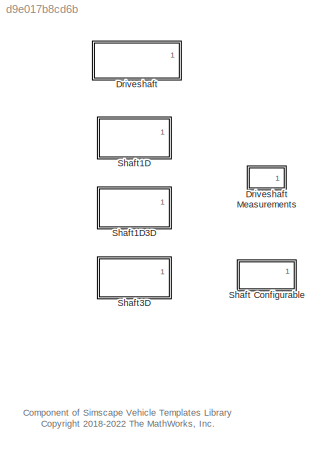
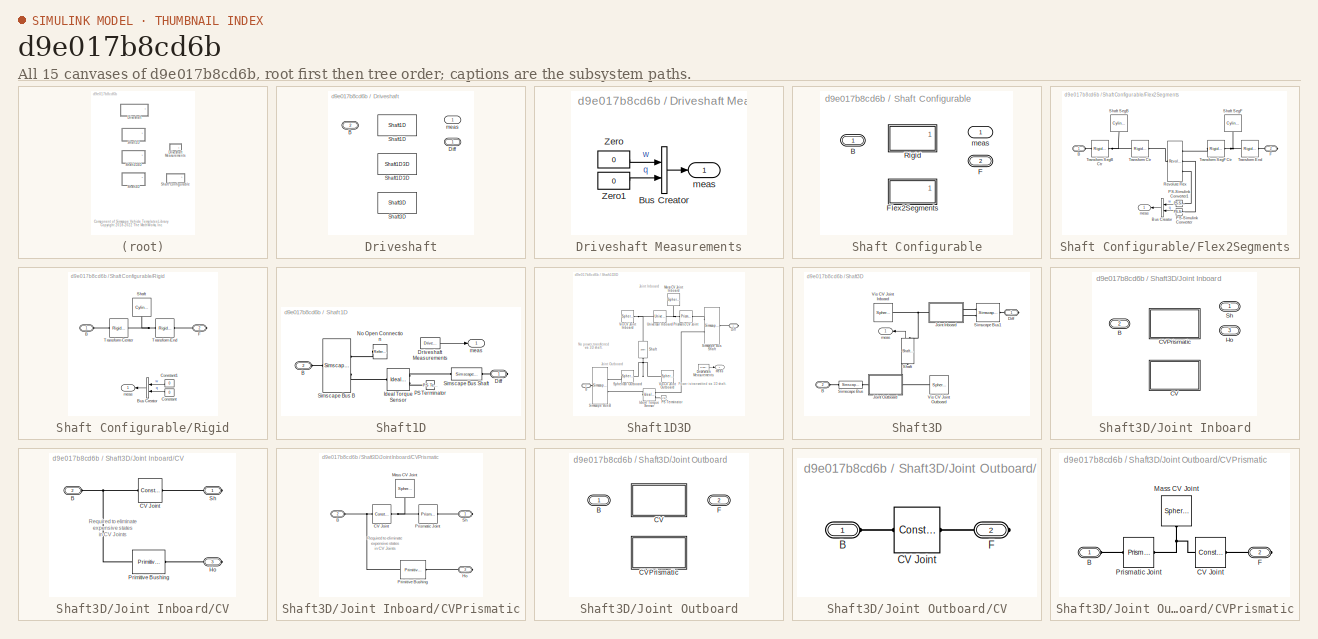
[diagram: thumbnail index - all 15 canvases of the model, root first then tree order]
MODEL slx_d9e017b8cd6b
KIND library
CONFIG AbsTol = auto
CONFIG EnableMultiTasking = off
CONFIG FixedStep = auto
CONFIG MaxStep = auto
CONFIG MinStep = auto
CONFIG RelTol = 1e-3
CONFIG SampleTimeConstraint = Unconstrained
CONFIG SolverName = VariableStepAuto
CONFIG StartTime = 0.0
CONFIG StopTime = 10.0
BLOCK [SubSystem] Driveshaft
  AttributesFormatString = %<ActiveVariant>
  Ports = [0, 1, 0, 0, 0, 1, 1]
  RequestExecContextInheritance = off
  Variant = on
  VariantControl = Variant1
BLOCK [SubSystem] Driveshaft Measurements
  Ports = [0, 1]
  RequestExecContextInheritance = off
BLOCK [BusCreator] Driveshaft Measurements/Bus Creator
  DisplayOption = bar
  InheritFromInputs = on
  Inputs = 2
  Ports = [2, 1]
BLOCK [Constant] Driveshaft Measurements/Zero
  OutDataTypeStr = Inherit: Inherit via back propagation
  Value = 0
BLOCK [Constant] Driveshaft Measurements/Zero1
  OutDataTypeStr = Inherit: Inherit via back propagation
  Value = 0
BLOCK [Outport] Driveshaft Measurements/meas
  VectorParamsAs1DForOutWhenUnconnected = off
BLOCK [PMIOPort] Driveshaft/ B
  Port = 2
  Side = Left
BLOCK [PMIOPort] Driveshaft/Diff
  Side = Right
BLOCK [Reference] Driveshaft/Shaft1D  REF=$bdroot/Shaft1D
  Ports = [0, 1, 0, 0, 0, 1, 1]
  SourceBlock = $bdroot/Shaft1D
  SourceType = Driveshaft Assembly (1D)
BLOCK [Reference] Driveshaft/Shaft1D3D  REF=$bdroot/Shaft1D3D
  Ports = [0, 1, 0, 0, 0, 1, 1]
  SourceBlock = $bdroot/Shaft1D3D
  SourceType = Driveshaft Assembly (1D and 3D)
BLOCK [Reference] Driveshaft/Shaft3D  REF=$bdroot/Shaft3D
  Ports = [0, 1, 0, 0, 0, 1, 1]
  SourceBlock = $bdroot/Shaft3D
  SourceType = Driveshaft Assembly (3D)
BLOCK [Outport] Driveshaft/meas
  VectorParamsAs1DForOutWhenUnconnected = off
BLOCK [SubSystem] Shaft Configurable
  Ports = [0, 1, 0, 0, 0, 1, 1]
  RequestExecContextInheritance = off
  Variant = on
  VariantControl = Variant1
BLOCK [PMIOPort] Shaft Configurable/ B
  Side = Left
BLOCK [PMIOPort] Shaft Configurable/ F
  Port = 2
  Side = Right
BLOCK [Outport] Shaft Configurable/ meas
  VectorParamsAs1DForOutWhenUnconnected = off
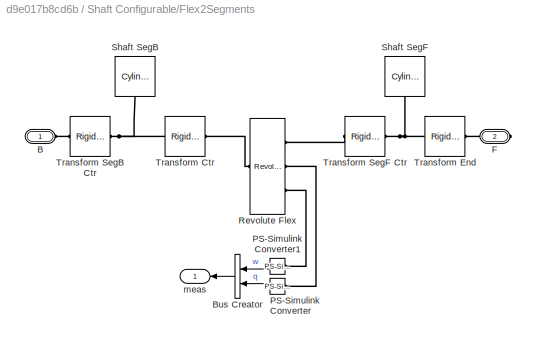
BLOCK [SubSystem] Shaft Configurable/Flex2Segments
  Ports = [0, 1, 0, 0, 0, 1, 1]
  RequestExecContextInheritance = off
  VariantControl = Flex2Segments
BLOCK [PMIOPort] Shaft Configurable/Flex2Segments/B
  Side = Left
BLOCK [BusCreator] Shaft Configurable/Flex2Segments/Bus Creator
  DisplayOption = bar
  InheritFromInputs = on
  Inputs = 2
  Ports = [2, 1]
BLOCK [PMIOPort] Shaft Configurable/Flex2Segments/F
  Port = 2
  Side = Right
BLOCK [Reference] Shaft Configurable/Flex2Segments/PS-Simulink Converter  REF=nesl_utility/PS-Simulink
Converter
  NameLocation = top
  Ports = [0, 1, 0, 0, 0, 1]
  SourceBlock = nesl_utility/PS-Simulink\nConverter
  SourceProductBaseCode = SS,PW,VE
  SourceType = PS-Simulink\nConverter
BLOCK [Reference] Shaft Configurable/Flex2Segments/PS-Simulink Converter1  REF=nesl_utility/PS-Simulink
Converter
  NameLocation = top
  Ports = [0, 1, 0, 0, 0, 1]
  SourceBlock = nesl_utility/PS-Simulink\nConverter
  SourceProductBaseCode = SS,PW,VE
  SourceType = PS-Simulink\nConverter
BLOCK [Reference] Shaft Configurable/Flex2Segments/Revolute Flex  REF=sm_lib/Joints/Revolute Joint
  Ports = [0, 0, 0, 0, 0, 1, 3]
  SourceBlock = sm_lib/Joints/Revolute Joint
  SourceProductBaseCode = MS
  SourceType = Revolute Joint
BLOCK [Reference] Shaft Configurable/Flex2Segments/Shaft SegB  REF=sm_lib/Body Elements/Cylindrical Solid
  NameLocation = left
  Ports = [0, 0, 0, 0, 0, 0, 1]
  SourceBlock = sm_lib/Body Elements/Cylindrical Solid
  SourceProductBaseCode = MS
  SourceType = Cylindrical Solid
BLOCK [Reference] Shaft Configurable/Flex2Segments/Shaft SegF  REF=sm_lib/Body Elements/Cylindrical Solid
  NameLocation = left
  Ports = [0, 0, 0, 0, 0, 0, 1]
  SourceBlock = sm_lib/Body Elements/Cylindrical Solid
  SourceProductBaseCode = MS
  SourceType = Cylindrical Solid
BLOCK [Reference] Shaft Configurable/Flex2Segments/Transform Ctr  REF=sm_lib/Frames and
Transforms/Rigid
Transform
  Ports = [0, 0, 0, 0, 0, 1, 1]
  SourceBlock = sm_lib/Frames and\nTransforms/Rigid\nTransform
  SourceProductBaseCode = MS
  SourceType = Rigid\nTransform
BLOCK [Reference] Shaft Configurable/Flex2Segments/Transform End  REF=sm_lib/Frames and
Transforms/Rigid
Transform
  Ports = [0, 0, 0, 0, 0, 1, 1]
  SourceBlock = sm_lib/Frames and\nTransforms/Rigid\nTransform
  SourceProductBaseCode = MS
  SourceType = Rigid\nTransform
BLOCK [Reference] Shaft Configurable/Flex2Segments/Transform SegB Ctr  REF=sm_lib/Frames and
Transforms/Rigid
Transform
  Ports = [0, 0, 0, 0, 0, 1, 1]
  SourceBlock = sm_lib/Frames and\nTransforms/Rigid\nTransform
  SourceProductBaseCode = MS
  SourceType = Rigid\nTransform
BLOCK [Reference] Shaft Configurable/Flex2Segments/Transform SegF Ctr  REF=sm_lib/Frames and
Transforms/Rigid
Transform
  Ports = [0, 0, 0, 0, 0, 1, 1]
  SourceBlock = sm_lib/Frames and\nTransforms/Rigid\nTransform
  SourceProductBaseCode = MS
  SourceType = Rigid\nTransform
BLOCK [Outport] Shaft Configurable/Flex2Segments/meas
  VectorParamsAs1DForOutWhenUnconnected = off
BLOCK [SubSystem] Shaft Configurable/Rigid
  Ports = [0, 1, 0, 0, 0, 1, 1]
  RequestExecContextInheritance = off
  VariantControl = Rigid
BLOCK [PMIOPort] Shaft Configurable/Rigid/B
  Side = Left
BLOCK [BusCreator] Shaft Configurable/Rigid/Bus Creator
  DisplayOption = bar
  InheritFromInputs = on
  Inputs = 2
  Ports = [2, 1]
BLOCK [Constant] Shaft Configurable/Rigid/Constant
  Value = 0
BLOCK [Constant] Shaft Configurable/Rigid/Constant1
  Value = 0
BLOCK [PMIOPort] Shaft Configurable/Rigid/F
  Port = 2
  Side = Right
BLOCK [Reference] Shaft Configurable/Rigid/Shaft  REF=sm_lib/Body Elements/Cylindrical Solid
  NameLocation = left
  Ports = [0, 0, 0, 0, 0, 0, 1]
  SourceBlock = sm_lib/Body Elements/Cylindrical Solid
  SourceProductBaseCode = MS
  SourceType = Cylindrical Solid
BLOCK [Reference] Shaft Configurable/Rigid/Transform Center  REF=sm_lib/Frames and
Transforms/Rigid
Transform
  Ports = [0, 0, 0, 0, 0, 1, 1]
  SourceBlock = sm_lib/Frames and\nTransforms/Rigid\nTransform
  SourceProductBaseCode = MS
  SourceType = Rigid\nTransform
BLOCK [Reference] Shaft Configurable/Rigid/Transform End  REF=sm_lib/Frames and
Transforms/Rigid
Transform
  Ports = [0, 0, 0, 0, 0, 1, 1]
  SourceBlock = sm_lib/Frames and\nTransforms/Rigid\nTransform
  SourceProductBaseCode = MS
  SourceType = Rigid\nTransform
BLOCK [Outport] Shaft Configurable/Rigid/meas
  VectorParamsAs1DForOutWhenUnconnected = off
BLOCK [SubSystem] Shaft1D
  Ports = [0, 1, 0, 0, 0, 1, 1]
  RequestExecContextInheritance = off
  VariantControl = Shaft1D
BLOCK [PMIOPort] Shaft1D/B
  Port = 2
  Side = Left
BLOCK [PMIOPort] Shaft1D/Diff
  Side = Right
BLOCK [Reference] Shaft1D/Driveshaft Measurements  REF=$bdroot/Driveshaft
Measurements
  Ports = [0, 1]
  SourceBlock = $bdroot/Driveshaft\nMeasurements
  SourceType = SubSystem
BLOCK [Reference] Shaft1D/Ideal Torque Sensor  REF=fl_lib/Mechanical/Mechanical Sensors/Ideal Torque Sensor
  Ports = [0, 0, 0, 0, 0, 1, 2]
  SourceBlock = fl_lib/Mechanical/Mechanical Sensors/Ideal Torque Sensor
  SourceProductBaseCode = PW,SS,VE
  SourceType = Ideal Torque Sensor
BLOCK [Reference] Shaft1D/No Open Connection  REF=sm_lib/Frames and
Transforms/Reference
Frame
  NameLocation = top
  Ports = [0, 0, 0, 0, 0, 0, 1]
  SourceBlock = sm_lib/Frames and\nTransforms/Reference\nFrame
  SourceProductBaseCode = MS
  SourceType = Reference\nFrame
BLOCK [Reference] Shaft1D/PS Terminator  REF=fl_lib/Physical Signals/Sinks/PS Terminator
  Ports = [0, 0, 0, 0, 0, 1]
  SourceBlock = fl_lib/Physical Signals/Sinks/PS Terminator
  SourceProductBaseCode = PW,SS,VE
  SourceType = PS Terminator
BLOCK [SimscapeBus] Shaft1D/Simscape Bus B
  HierarchyStrings = AxleIn;Axle1D
  Ports = [0, 0, 0, 0, 0, 2, 1]
BLOCK [SimscapeBus] Shaft1D/Simscape Bus Shaft
  HierarchyStrings = Shaft1D
  Ports = [0, 0, 0, 0, 0, 1, 1]
BLOCK [Outport] Shaft1D/meas
  VectorParamsAs1DForOutWhenUnconnected = off
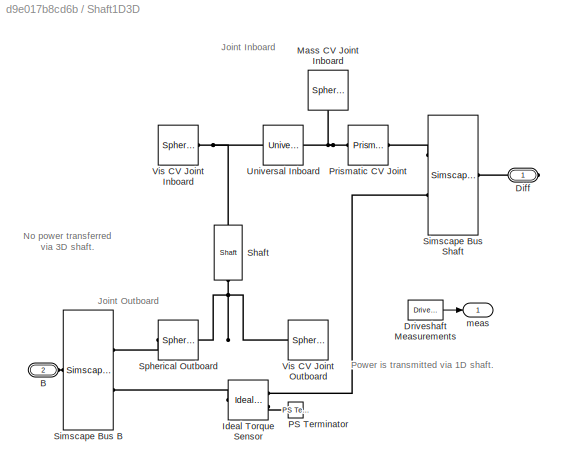
BLOCK [SubSystem] Shaft1D3D
  Ports = [0, 1, 0, 0, 0, 1, 1]
  RequestExecContextInheritance = off
  VariantControl = Shaft1D3D
BLOCK [PMIOPort] Shaft1D3D/B
  Port = 2
  Side = Left
BLOCK [PMIOPort] Shaft1D3D/Diff
  Side = Right
BLOCK [Reference] Shaft1D3D/Driveshaft Measurements  REF=$bdroot/Driveshaft
Measurements
  Ports = [0, 1]
  SourceBlock = $bdroot/Driveshaft\nMeasurements
  SourceType = SubSystem
BLOCK [Reference] Shaft1D3D/Ideal Torque Sensor  REF=fl_lib/Mechanical/Mechanical Sensors/Ideal Torque Sensor
  Ports = [0, 0, 0, 0, 0, 1, 2]
  SourceBlock = fl_lib/Mechanical/Mechanical Sensors/Ideal Torque Sensor
  SourceProductBaseCode = PW,SS,VE
  SourceType = Ideal Torque Sensor
BLOCK [Reference] Shaft1D3D/Mass CV Joint Inboard  REF=sm_lib/Body Elements/Spherical Solid
  NameLocation = right
  Ports = [0, 0, 0, 0, 0, 0, 1]
  SourceBlock = sm_lib/Body Elements/Spherical Solid
  SourceProductBaseCode = MS
  SourceType = Spherical Solid
BLOCK [Reference] Shaft1D3D/PS Terminator  REF=fl_lib/Physical Signals/Sinks/PS Terminator
  Ports = [0, 0, 0, 0, 0, 1]
  SourceBlock = fl_lib/Physical Signals/Sinks/PS Terminator
  SourceProductBaseCode = PW,SS,VE
  SourceType = PS Terminator
BLOCK [Reference] Shaft1D3D/Prismatic CV Joint  REF=sm_lib/Joints/Prismatic
Joint
  Ports = [0, 0, 0, 0, 0, 1, 1]
  SourceBlock = sm_lib/Joints/Prismatic\nJoint
  SourceProductBaseCode = MS
  SourceType = Prismatic\nJoint
BLOCK [Reference] Shaft1D3D/Shaft  REF=Differential_Components/Shaft
  NameLocation = right
  Ports = [0, 0, 0, 0, 0, 1, 1]
  SourceBlock = Differential_Components/Shaft
  SourceType = Rigid Shaft
BLOCK [SimscapeBus] Shaft1D3D/Simscape Bus B
  HierarchyStrings = AxleIn;Axle1D
  Ports = [0, 0, 0, 0, 0, 2, 1]
BLOCK [SimscapeBus] Shaft1D3D/Simscape Bus Shaft
  HierarchyStrings = Shaft3D;Shaft1D
  Ports = [0, 0, 0, 0, 0, 2, 1]
BLOCK [Reference] Shaft1D3D/Spherical Outboard  REF=sm_lib/Joints/Spherical
Joint
  Ports = [0, 0, 0, 0, 0, 1, 1]
  SourceBlock = sm_lib/Joints/Spherical\nJoint
  SourceProductBaseCode = MS
  SourceType = Spherical\nJoint
BLOCK [Reference] Shaft1D3D/Universal Inboard  REF=sm_lib/Joints/Universal
Joint
  Ports = [0, 0, 0, 0, 0, 1, 1]
  SourceBlock = sm_lib/Joints/Universal\nJoint
  SourceProductBaseCode = MS
  SourceType = Universal\nJoint
BLOCK [Reference] Shaft1D3D/Vis CV Joint Inboard  REF=sm_lib/Body Elements/Spherical Solid
  Ports = [0, 0, 0, 0, 0, 0, 1]
  SourceBlock = sm_lib/Body Elements/Spherical Solid
  SourceProductBaseCode = MS
  SourceType = Spherical Solid
BLOCK [Reference] Shaft1D3D/Vis CV Joint Outboard  REF=sm_lib/Body Elements/Spherical Solid
  NameLocation = top
  Ports = [0, 0, 0, 0, 0, 0, 1]
  SourceBlock = sm_lib/Body Elements/Spherical Solid
  SourceProductBaseCode = MS
  SourceType = Spherical Solid
BLOCK [Outport] Shaft1D3D/meas
  VectorParamsAs1DForOutWhenUnconnected = off
BLOCK [SubSystem] Shaft3D
  Ports = [0, 1, 0, 0, 0, 1, 1]
  RequestExecContextInheritance = off
  VariantControl = Shaft3D
BLOCK [PMIOPort] Shaft3D/B
  Port = 2
  Side = Left
BLOCK [PMIOPort] Shaft3D/Diff
  Side = Right
BLOCK [SubSystem] Shaft3D/Joint Inboard
  AttributesFormatString = %<ActiveVariant>
  Ports = [0, 0, 0, 0, 0, 1, 2]
  RequestExecContextInheritance = off
  Variant = on
  VariantControl = Variant1
BLOCK [PMIOPort] Shaft3D/Joint Inboard/ B
  Port = 2
  Side = Left
BLOCK [PMIOPort] Shaft3D/Joint Inboard/ Ho
  Port = 3
  Side = Right
BLOCK [PMIOPort] Shaft3D/Joint Inboard/ Sh
  Side = Right
BLOCK [SubSystem] Shaft3D/Joint Inboard/CV
  Ports = [0, 0, 0, 0, 0, 1, 2]
  RequestExecContextInheritance = off
  VariantControl = CV
BLOCK [PMIOPort] Shaft3D/Joint Inboard/CV/B
  Port = 2
  Side = Left
BLOCK [Reference] Shaft3D/Joint Inboard/CV/CV Joint  REF=sm_lib/Joints/Constant Velocity
Joint
  Ports = [0, 0, 0, 0, 0, 1, 1]
  SourceBlock = sm_lib/Joints/Constant Velocity\nJoint
  SourceProductBaseCode = MS
  SourceType = Constant Velocity\nJoint
BLOCK [PMIOPort] Shaft3D/Joint Inboard/CV/Ho
  Port = 3
  Side = Right
BLOCK [Reference] Shaft3D/Joint Inboard/CV/Primitive Bushing  REF=sm_car_lib/Utilities/Primitive Bushing  (lib defined in slx_05426f0848b6, slx_5dc2867fb1c9)
  Ports = [0, 0, 0, 0, 0, 1, 1]
  SourceBlock = sm_car_lib/Utilities/Primitive Bushing
BLOCK [PMIOPort] Shaft3D/Joint Inboard/CV/Sh
  Side = Right
BLOCK [SubSystem] Shaft3D/Joint Inboard/CVPrismatic
  Ports = [0, 0, 0, 0, 0, 1, 2]
  RequestExecContextInheritance = off
  VariantControl = CVPrismatic
BLOCK [PMIOPort] Shaft3D/Joint Inboard/CVPrismatic/B
  Port = 2
  Side = Left
BLOCK [Reference] Shaft3D/Joint Inboard/CVPrismatic/CV Joint  REF=sm_lib/Joints/Constant Velocity
Joint
  Ports = [0, 0, 0, 0, 0, 1, 1]
  SourceBlock = sm_lib/Joints/Constant Velocity\nJoint
  SourceProductBaseCode = MS
  SourceType = Constant Velocity\nJoint
BLOCK [PMIOPort] Shaft3D/Joint Inboard/CVPrismatic/Ho
  Port = 3
  Side = Right
BLOCK [Reference] Shaft3D/Joint Inboard/CVPrismatic/Mass CV Joint  REF=sm_lib/Body Elements/Spherical Solid
  NameLocation = right
  Ports = [0, 0, 0, 0, 0, 0, 1]
  SourceBlock = sm_lib/Body Elements/Spherical Solid
  SourceProductBaseCode = MS
  SourceType = Spherical Solid
BLOCK [Reference] Shaft3D/Joint Inboard/CVPrismatic/Primitive Bushing  REF=sm_car_lib/Utilities/Primitive Bushing  (lib defined in slx_05426f0848b6, slx_5dc2867fb1c9)
  Ports = [0, 0, 0, 0, 0, 1, 1]
  SourceBlock = sm_car_lib/Utilities/Primitive Bushing
BLOCK [Reference] Shaft3D/Joint Inboard/CVPrismatic/Prismatic Joint  REF=sm_lib/Joints/Prismatic
Joint
  Ports = [0, 0, 0, 0, 0, 1, 1]
  SourceBlock = sm_lib/Joints/Prismatic\nJoint
  SourceProductBaseCode = MS
  SourceType = Prismatic\nJoint
BLOCK [PMIOPort] Shaft3D/Joint Inboard/CVPrismatic/Sh
  Side = Right
BLOCK [SubSystem] Shaft3D/Joint Outboard
  AttributesFormatString = %<ActiveVariant>
  Ports = [0, 0, 0, 0, 0, 1, 1]
  RequestExecContextInheritance = off
  Variant = on
  VariantControl = Variant1
BLOCK [PMIOPort] Shaft3D/Joint Outboard/ B
  Side = Left
BLOCK [PMIOPort] Shaft3D/Joint Outboard/ F
  Port = 2
  Side = Right
BLOCK [SubSystem] Shaft3D/Joint Outboard/CV
  Ports = [0, 0, 0, 0, 0, 1, 1]
  RequestExecContextInheritance = off
  VariantControl = CV
BLOCK [PMIOPort] Shaft3D/Joint Outboard/CV/B
  Side = Left
BLOCK [Reference] Shaft3D/Joint Outboard/CV/CV Joint  REF=sm_lib/Joints/Constant Velocity
Joint
  Ports = [0, 0, 0, 0, 0, 1, 1]
  SourceBlock = sm_lib/Joints/Constant Velocity\nJoint
  SourceProductBaseCode = MS
  SourceType = Constant Velocity\nJoint
BLOCK [PMIOPort] Shaft3D/Joint Outboard/CV/F
  Port = 2
  Side = Right
BLOCK [SubSystem] Shaft3D/Joint Outboard/CVPrismatic
  Ports = [0, 0, 0, 0, 0, 1, 1]
  RequestExecContextInheritance = off
  VariantControl = CVPrismatic
BLOCK [PMIOPort] Shaft3D/Joint Outboard/CVPrismatic/B
  Side = Left
BLOCK [Reference] Shaft3D/Joint Outboard/CVPrismatic/CV Joint  REF=sm_lib/Joints/Constant Velocity
Joint
  Ports = [0, 0, 0, 0, 0, 1, 1]
  SourceBlock = sm_lib/Joints/Constant Velocity\nJoint
  SourceProductBaseCode = MS
  SourceType = Constant Velocity\nJoint
BLOCK [PMIOPort] Shaft3D/Joint Outboard/CVPrismatic/F
  Port = 2
  Side = Right
BLOCK [Reference] Shaft3D/Joint Outboard/CVPrismatic/Mass CV Joint  REF=sm_lib/Body Elements/Spherical Solid
  NameLocation = right
  Ports = [0, 0, 0, 0, 0, 0, 1]
  SourceBlock = sm_lib/Body Elements/Spherical Solid
  SourceProductBaseCode = MS
  SourceType = Spherical Solid
BLOCK [Reference] Shaft3D/Joint Outboard/CVPrismatic/Prismatic Joint  REF=sm_lib/Joints/Prismatic
Joint
  Ports = [0, 0, 0, 0, 0, 1, 1]
  SourceBlock = sm_lib/Joints/Prismatic\nJoint
  SourceProductBaseCode = MS
  SourceType = Prismatic\nJoint
BLOCK [Reference] Shaft3D/Shaft  REF=$bdroot/Shaft Configurable
  AttributesFormatString = %<ActiveVariant>
  NameLocation = right
  Ports = [0, 1, 0, 0, 0, 1, 1]
  SourceBlock = $bdroot/Shaft Configurable
  SourceType = Shaft (Configurable)
BLOCK [SimscapeBus] Shaft3D/Simscape Bus
  HierarchyStrings = AxleIn
  Ports = [0, 0, 0, 0, 0, 1, 1]
BLOCK [SimscapeBus] Shaft3D/Simscape Bus1
  HierarchyStrings = Shaft;Housing
  Ports = [0, 0, 0, 0, 0, 2, 1]
BLOCK [Reference] Shaft3D/Vis CV Joint Inboard  REF=sm_lib/Body Elements/Spherical Solid
  NameLocation = top
  Ports = [0, 0, 0, 0, 0, 0, 1]
  SourceBlock = sm_lib/Body Elements/Spherical Solid
  SourceProductBaseCode = MS
  SourceType = Spherical Solid
BLOCK [Reference] Shaft3D/Vis CV Joint Outboard  REF=sm_lib/Body Elements/Spherical Solid
  Ports = [0, 0, 0, 0, 0, 0, 1]
  SourceBlock = sm_lib/Body Elements/Spherical Solid
  SourceProductBaseCode = MS
  SourceType = Spherical Solid
BLOCK [Outport] Shaft3D/meas
  VectorParamsAs1DForOutWhenUnconnected = off
ANNOTATION (root): Component of Simscape Vehicle Templates Library <copyright redacted>
ANNOTATION Shaft1D3D: Joint Inboard
ANNOTATION Shaft1D3D: Joint Outboard
ANNOTATION Shaft1D3D: No power transferred via 3D shaft.
ANNOTATION Shaft1D3D: Power is transmitted via 1D shaft.
ANNOTATION Shaft3D/Joint Inboard/CV: Required to eliminate expensive states in CV Joints
ANNOTATION Shaft3D/Joint Inboard/CVPrismatic: Required to eliminate expensive states in CV Joints
LINE Driveshaft Measurements/Bus Creator:1 -> Driveshaft Measurements/meas:1
LINE Driveshaft Measurements/Zero1:1 -> Driveshaft Measurements/Bus Creator:2
LINE Driveshaft Measurements/Zero:1 -> Driveshaft Measurements/Bus Creator:1
